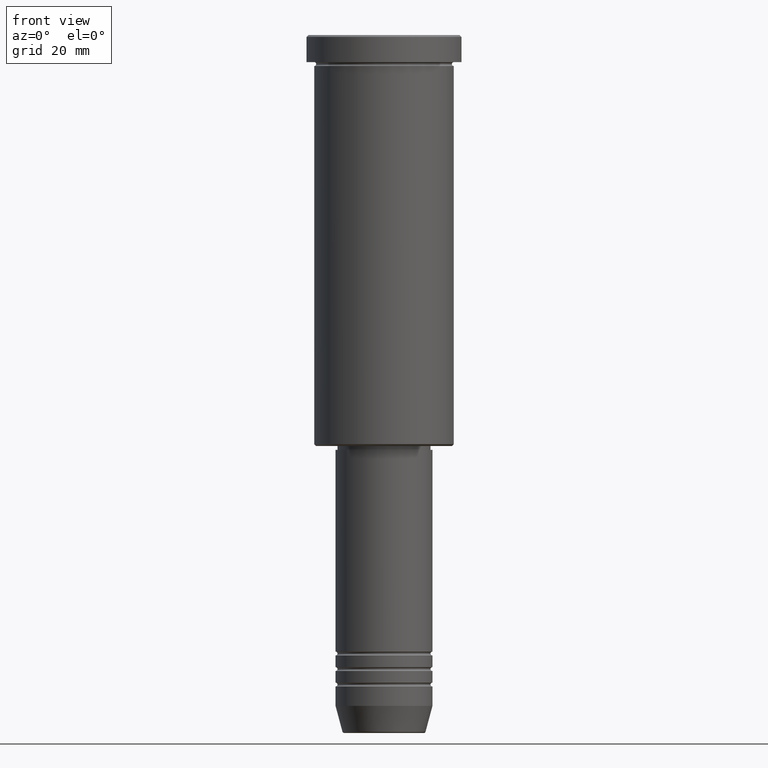
[diagram: clean part render]
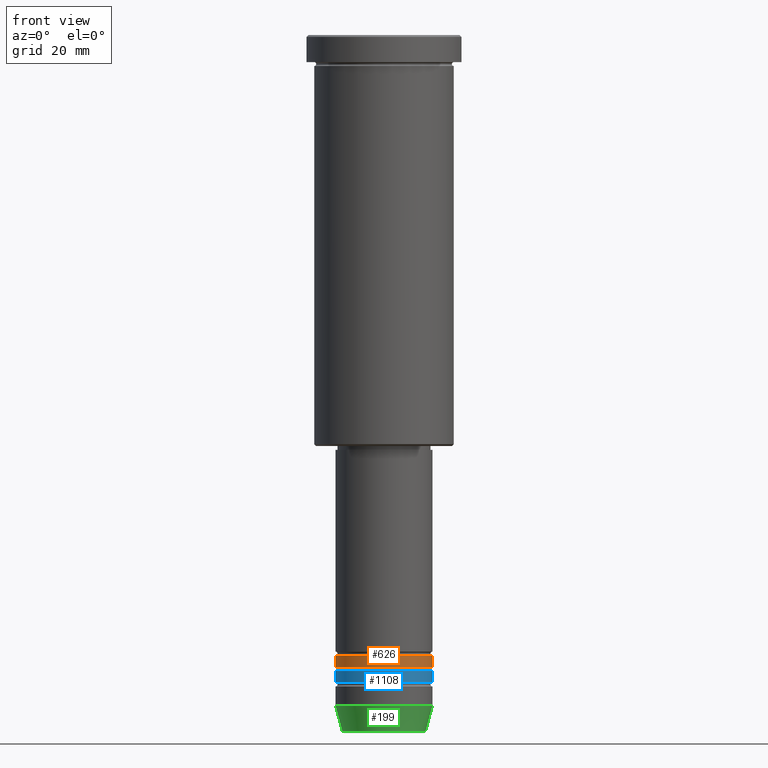
[diagram: same view with three faces highlighted in distinct colors, each labeled with its STEP entity id]
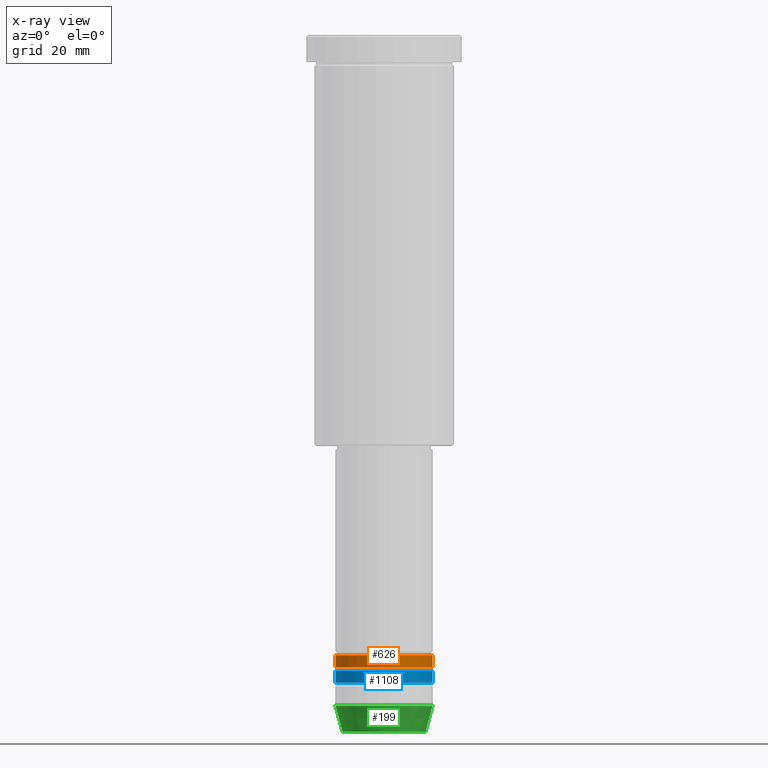
[diagram: x-ray of the same camera — body ghosted, the three highlighted faces saturated]
A machine part, front view with three faces highlighted in distinct colors.
The next image is the same camera in x-ray (body ghosted, the three faces saturated) — at least one of them is partly hidden behind the body in this view.
Their STEP definitions:

[orange] entity #626 — the highlighted cylindrical surface (partial cylindrical patch) has radius 12.5 mm, axis along (-0, -0, 1).
#10 = ORIENTED_EDGE ( 'NONE', *, *, #1142, .F. ) ;
#20 = CARTESIAN_POINT ( 'NONE',  ( 12.50000000000000355, 0.000000000000000000, -163.0000000000000000 ) ) ;
#58 = DIRECTION ( 'NONE',  ( -0.000000000000000000, -0.000000000000000000, 1.000000000000000000 ) ) ;
#140 = VERTEX_POINT ( 'NONE', #20 ) ;
#145 = EDGE_CURVE ( 'NONE', #512, #140, #806, .T. ) ;
#161 = LINE ( 'NONE', #423, #1055 ) ;
#198 = DIRECTION ( 'NONE',  ( -0.000000000000000000, -0.000000000000000000, 1.000000000000000000 ) ) ;
#209 = CARTESIAN_POINT ( 'NONE',  ( 0.000000000000000000, 0.000000000000000000, 0.000000000000000000 ) ) ;
#237 = EDGE_CURVE ( 'NONE', #140, #683, #161, .T. ) ;
#290 = DIRECTION ( 'NONE',  ( -0.000000000000000000, -0.000000000000000000, 1.000000000000000000 ) ) ;
#316 = EDGE_CURVE ( 'NONE', #512, #376, #526, .T. ) ;
#338 = ORIENTED_EDGE ( 'NONE', *, *, #316, .F. ) ;
#356 = DIRECTION ( 'NONE',  ( -0.000000000000000000, -0.000000000000000000, 1.000000000000000000 ) ) ;
#376 = VERTEX_POINT ( 'NONE', #463 ) ;
#418 = AXIS2_PLACEMENT_3D ( 'NONE', #209, #198, #1133 ) ;
#423 = CARTESIAN_POINT ( 'NONE',  ( 12.50000000000000178, 0.000000000000000000, 0.000000000000000000 ) ) ;
#463 = CARTESIAN_POINT ( 'NONE',  ( -12.50000000000000000, 1.530808498934191719E-15, -160.0000000000000000 ) ) ;
#492 = EDGE_LOOP ( 'NONE', ( #338, #968, #495, #10 ) ) ;
#495 = ORIENTED_EDGE ( 'NONE', *, *, #237, .T. ) ;
#512 = VERTEX_POINT ( 'NONE', #665 ) ;
#526 = LINE ( 'NONE', #616, #1113 ) ;
#529 = AXIS2_PLACEMENT_3D ( 'NONE', #1060, #290, #580 ) ;
#534 = CIRCLE ( 'NONE', #594, 12.50000000000000000 ) ;
#580 = DIRECTION ( 'NONE',  ( 1.000000000000000000, 0.000000000000000000, 0.000000000000000000 ) ) ;
#594 = AXIS2_PLACEMENT_3D ( 'NONE', #611, #975, #1144 ) ;
#611 = CARTESIAN_POINT ( 'NONE',  ( 0.000000000000000000, 0.000000000000000000, -160.0000000000000000 ) ) ;
#616 = CARTESIAN_POINT ( 'NONE',  ( -12.50000000000000178, 1.530808498934191719E-15, 0.000000000000000000 ) ) ;
#626 = ADVANCED_FACE ( 'NONE', ( #1031 ), #1040, .T. ) ;
#665 = CARTESIAN_POINT ( 'NONE',  ( -12.50000000000000533, 1.530808498934192113E-15, -163.0000000000000000 ) ) ;
#683 = VERTEX_POINT ( 'NONE', #694 ) ;
#694 = CARTESIAN_POINT ( 'NONE',  ( 12.50000000000000000, 0.000000000000000000, -160.0000000000000000 ) ) ;
#806 = CIRCLE ( 'NONE', #529, 12.50000000000000355 ) ;
#968 = ORIENTED_EDGE ( 'NONE', *, *, #145, .T. ) ;
#975 = DIRECTION ( 'NONE',  ( -0.000000000000000000, -0.000000000000000000, 1.000000000000000000 ) ) ;
#1031 = FACE_OUTER_BOUND ( 'NONE', #492, .T. ) ;
#1040 = CYLINDRICAL_SURFACE ( 'NONE', #418, 12.50000000000000178 ) ;
#1055 = VECTOR ( 'NONE', #58, 1000.000000000000000 ) ;
#1060 = CARTESIAN_POINT ( 'NONE',  ( 0.000000000000000000, 0.000000000000000000, -163.0000000000000000 ) ) ;
#1113 = VECTOR ( 'NONE', #356, 1000.000000000000000 ) ;
#1133 = DIRECTION ( 'NONE',  ( 1.000000000000000000, 0.000000000000000000, 0.000000000000000000 ) ) ;
#1142 = EDGE_CURVE ( 'NONE', #376, #683, #534, .T. ) ;
#1144 = DIRECTION ( 'NONE',  ( 1.000000000000000000, 0.000000000000000000, 0.000000000000000000 ) ) ;

[blue] entity #1108 — the highlighted cylindrical surface (partial cylindrical patch) has radius 12.5 mm, axis along (-0, -0, 1).
#29 = VERTEX_POINT ( 'NONE', #617 ) ;
#66 = CIRCLE ( 'NONE', #325, 12.50000000000000000 ) ;
#83 = VECTOR ( 'NONE', #479, 1000.000000000000000 ) ;
#107 = DIRECTION ( 'NONE',  ( -0.000000000000000000, -0.000000000000000000, 1.000000000000000000 ) ) ;
#136 = CIRCLE ( 'NONE', #810, 12.50000000000000000 ) ;
#200 = EDGE_LOOP ( 'NONE', ( #394, #776, #780, #647 ) ) ;
#232 = CARTESIAN_POINT ( 'NONE',  ( 12.50000000000000000, 0.000000000000000000, -164.0000000000000000 ) ) ;
#236 = LINE ( 'NONE', #334, #1132 ) ;
#270 = AXIS2_PLACEMENT_3D ( 'NONE', #938, #854, #764 ) ;
#297 = CARTESIAN_POINT ( 'NONE',  ( 0.000000000000000000, 0.000000000000000000, -164.0000000000000000 ) ) ;
#309 = CARTESIAN_POINT ( 'NONE',  ( -12.50000000000000000, 1.530808498934191521E-15, 0.000000000000000000 ) ) ;
#325 = AXIS2_PLACEMENT_3D ( 'NONE', #437, #107, #450 ) ;
#329 = DIRECTION ( 'NONE',  ( -0.000000000000000000, -0.000000000000000000, 1.000000000000000000 ) ) ;
#334 = CARTESIAN_POINT ( 'NONE',  ( 12.50000000000000000, 0.000000000000000000, 0.000000000000000000 ) ) ;
#361 = VERTEX_POINT ( 'NONE', #232 ) ;
#394 = ORIENTED_EDGE ( 'NONE', *, *, #645, .F. ) ;
#395 = FACE_OUTER_BOUND ( 'NONE', #200, .T. ) ;
#437 = CARTESIAN_POINT ( 'NONE',  ( 0.000000000000000000, 0.000000000000000000, -166.9999999999999716 ) ) ;
#450 = DIRECTION ( 'NONE',  ( 1.000000000000000000, 0.000000000000000000, 0.000000000000000000 ) ) ;
#479 = DIRECTION ( 'NONE',  ( -0.000000000000000000, -0.000000000000000000, 1.000000000000000000 ) ) ;
#482 = CYLINDRICAL_SURFACE ( 'NONE', #270, 12.50000000000000000 ) ;
#565 = CARTESIAN_POINT ( 'NONE',  ( 12.50000000000000000, 0.000000000000000000, -166.9999999999999716 ) ) ;
#585 = LINE ( 'NONE', #309, #83 ) ;
#617 = CARTESIAN_POINT ( 'NONE',  ( -12.50000000000000000, 1.530808498934191521E-15, -166.9999999999999716 ) ) ;
#643 = CARTESIAN_POINT ( 'NONE',  ( -12.50000000000000000, 1.530808498934191521E-15, -164.0000000000000000 ) ) ;
#645 = EDGE_CURVE ( 'NONE', #29, #879, #585, .T. ) ;
#647 = ORIENTED_EDGE ( 'NONE', *, *, #1015, .F. ) ;
#764 = DIRECTION ( 'NONE',  ( 1.000000000000000000, 0.000000000000000000, 0.000000000000000000 ) ) ;
#776 = ORIENTED_EDGE ( 'NONE', *, *, #850, .T. ) ;
#780 = ORIENTED_EDGE ( 'NONE', *, *, #781, .T. ) ;
#781 = EDGE_CURVE ( 'NONE', #992, #361, #236, .T. ) ;
#810 = AXIS2_PLACEMENT_3D ( 'NONE', #297, #934, #955 ) ;
#850 = EDGE_CURVE ( 'NONE', #29, #992, #66, .T. ) ;
#854 = DIRECTION ( 'NONE',  ( -0.000000000000000000, -0.000000000000000000, 1.000000000000000000 ) ) ;
#879 = VERTEX_POINT ( 'NONE', #643 ) ;
#934 = DIRECTION ( 'NONE',  ( -0.000000000000000000, -0.000000000000000000, 1.000000000000000000 ) ) ;
#938 = CARTESIAN_POINT ( 'NONE',  ( 0.000000000000000000, 0.000000000000000000, 0.000000000000000000 ) ) ;
#955 = DIRECTION ( 'NONE',  ( 1.000000000000000000, 0.000000000000000000, 0.000000000000000000 ) ) ;
#992 = VERTEX_POINT ( 'NONE', #565 ) ;
#1015 = EDGE_CURVE ( 'NONE', #879, #361, #136, .T. ) ;
#1108 = ADVANCED_FACE ( 'NONE', ( #395 ), #482, .T. ) ;
#1132 = VECTOR ( 'NONE', #329, 1000.000000000000000 ) ;

[green] entity #199 — the highlighted conical surface has half-angle 15 deg.
#1 = VERTEX_POINT ( 'NONE', #737 ) ;
#18 = LINE ( 'NONE', #544, #491 ) ;
#23 = CARTESIAN_POINT ( 'NONE',  ( 0.000000000000000000, 0.000000000000000000, -179.6294095225512706 ) ) ;
#41 = FACE_OUTER_BOUND ( 'NONE', #919, .T. ) ;
#43 = CIRCLE ( 'NONE', #882, 10.72365507213719127 ) ;
#45 = CARTESIAN_POINT ( 'NONE',  ( -10.72365507213719127, 1.422038742429750516E-15, -179.6294095225512706 ) ) ;
#69 = ORIENTED_EDGE ( 'NONE', *, *, #661, .F. ) ;
#188 = AXIS2_PLACEMENT_3D ( 'NONE', #498, #922, #330 ) ;
#193 = LINE ( 'NONE', #724, #1039 ) ;
#199 = ADVANCED_FACE ( 'NONE', ( #41 ), #1021, .T. ) ;
#205 = CIRCLE ( 'NONE', #1001, 12.50000000000000000 ) ;
#214 = DIRECTION ( 'NONE',  ( 1.000000000000000000, 0.000000000000000000, 0.000000000000000000 ) ) ;
#260 = DIRECTION ( 'NONE',  ( -0.000000000000000000, -0.000000000000000000, 1.000000000000000000 ) ) ;
#284 = CARTESIAN_POINT ( 'NONE',  ( 12.50000000000000000, 0.000000000000000000, -173.0000000000000284 ) ) ;
#330 = DIRECTION ( 'NONE',  ( 1.000000000000000000, 0.000000000000000000, 0.000000000000000000 ) ) ;
#406 = EDGE_CURVE ( 'NONE', #1029, #1, #43, .T. ) ;
#491 = VECTOR ( 'NONE', #1006, 1000.000000000000000 ) ;
#498 = CARTESIAN_POINT ( 'NONE',  ( 0.000000000000000000, 0.000000000000000000, -173.0000000000000284 ) ) ;
#544 = CARTESIAN_POINT ( 'NONE',  ( 12.50000000000000000, 0.000000000000000000, -173.0000000000000284 ) ) ;
#661 = EDGE_CURVE ( 'NONE', #1159, #826, #205, .T. ) ;
#676 = DIRECTION ( 'NONE',  ( -0.000000000000000000, -0.000000000000000000, 1.000000000000000000 ) ) ;
#719 = DIRECTION ( 'NONE',  ( -0.2588190451025213501, 3.169619151431772337E-17, 0.9659258262890680902 ) ) ;
#721 = ORIENTED_EDGE ( 'NONE', *, *, #911, .F. ) ;
#724 = CARTESIAN_POINT ( 'NONE',  ( -12.50000000000000000, 1.530808498934191521E-15, -173.0000000000000284 ) ) ;
#737 = CARTESIAN_POINT ( 'NONE',  ( 10.72365507213719127, 0.000000000000000000, -179.6294095225512706 ) ) ;
#826 = VERTEX_POINT ( 'NONE', #284 ) ;
#882 = AXIS2_PLACEMENT_3D ( 'NONE', #23, #260, #921 ) ;
#886 = CARTESIAN_POINT ( 'NONE',  ( -12.50000000000000000, 1.530808498934191521E-15, -173.0000000000000284 ) ) ;
#911 = EDGE_CURVE ( 'NONE', #1029, #1159, #193, .T. ) ;
#918 = EDGE_CURVE ( 'NONE', #1, #826, #18, .T. ) ;
#919 = EDGE_LOOP ( 'NONE', ( #721, #989, #1073, #69 ) ) ;
#921 = DIRECTION ( 'NONE',  ( 1.000000000000000000, 0.000000000000000000, 0.000000000000000000 ) ) ;
#922 = DIRECTION ( 'NONE',  ( -0.000000000000000000, -0.000000000000000000, 1.000000000000000000 ) ) ;
#956 = CARTESIAN_POINT ( 'NONE',  ( 0.000000000000000000, 0.000000000000000000, -173.0000000000000284 ) ) ;
#989 = ORIENTED_EDGE ( 'NONE', *, *, #406, .T. ) ;
#1001 = AXIS2_PLACEMENT_3D ( 'NONE', #956, #676, #214 ) ;
#1006 = DIRECTION ( 'NONE',  ( 0.2588190451025213501, 0.000000000000000000, 0.9659258262890680902 ) ) ;
#1021 = CONICAL_SURFACE ( 'NONE', #188, 12.50000000000000000, 0.2617993877991500740 ) ;
#1029 = VERTEX_POINT ( 'NONE', #45 ) ;
#1039 = VECTOR ( 'NONE', #719, 1000.000000000000000 ) ;
#1073 = ORIENTED_EDGE ( 'NONE', *, *, #918, .T. ) ;
#1159 = VERTEX_POINT ( 'NONE', #886 ) ;